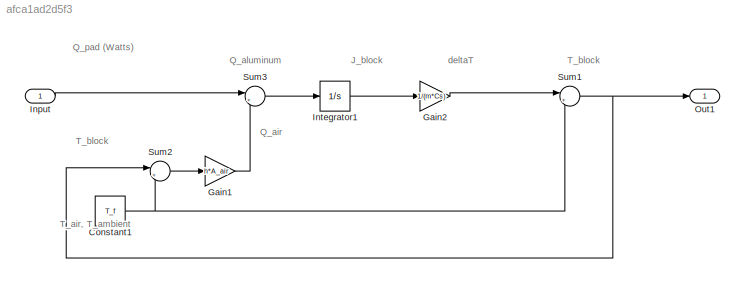
MODEL slx_afca1ad2d5f3
KIND model
CONFIG AbsTol = auto
CONFIG EnableMultiTasking = off
CONFIG FixedStep = auto
CONFIG MaxStep = auto
CONFIG MinStep = auto
CONFIG RelTol = 1e-3
CONFIG SampleTimeConstraint = Unconstrained
CONFIG SolverName = VariableStepAuto
CONFIG StartTime = 0.0
CONFIG StopTime = 10.0
BLOCK [Constant] Constant1
  Value = T_f
BLOCK [Gain] Gain1
  Gain = h*A_air
BLOCK [Gain] Gain2
  Gain = 1/(m*Cs)
BLOCK [Inport] Input
BLOCK [Integrator] Integrator1
BLOCK [Outport] Out1
BLOCK [Sum] Sum1
  Inputs = |++
BLOCK [Sum] Sum2
  Inputs = |+-
BLOCK [Sum] Sum3
  Inputs = |+-
ANNOTATION (root): J_block
ANNOTATION (root): Q_air
ANNOTATION (root): Q_aluminum
ANNOTATION (root): Q_pad (Watts)
ANNOTATION (root): T_air, T_ambient
ANNOTATION (root): T_block
ANNOTATION (root): deltaT
NET Constant1:1 -> Sum1:2, Sum2:2
LINE Gain1:1 -> Sum3:2
LINE Gain2:1 -> Sum1:1
LINE Input:1 -> Sum3:1
LINE Integrator1:1 -> Gain2:1
NET Sum1:1 -> Out1:1, Sum2:1
LINE Sum2:1 -> Gain1:1
LINE Sum3:1 -> Integrator1:1
note: NET lines group one-source signal fan-out (src -> all destinations, sorted); 1:1 wires keep LINE
